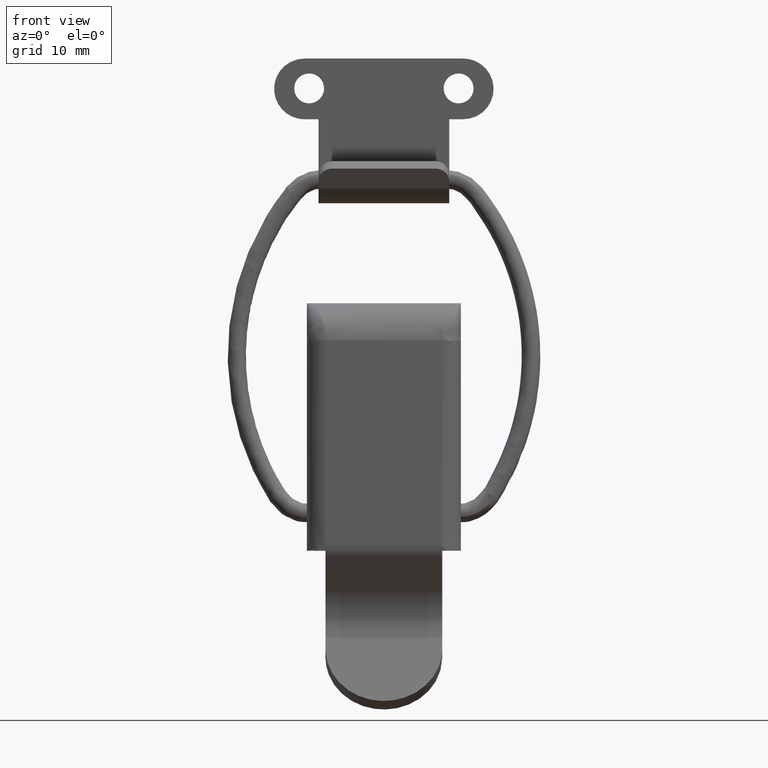
[diagram: clean part render]
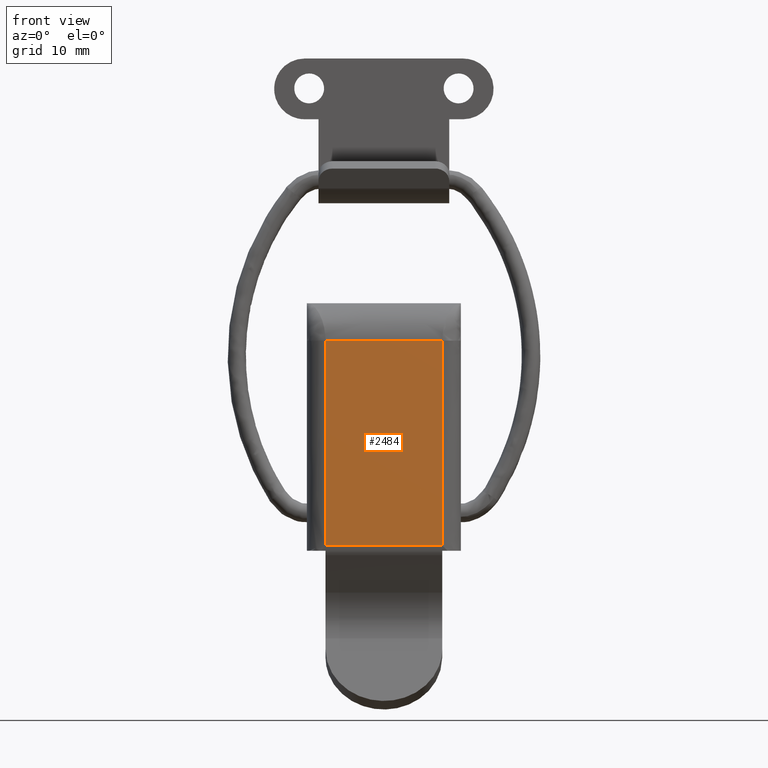
[diagram: same view with one face highlighted and labeled with its STEP entity id]
A machine part, front view. The second image highlights one B-rep face of the part: STEP entity #2484.
In plain terms, the highlighted face is a freeform B-spline surface patch.
Its self-contained STEP definition (entity closure, byte-faithful):
#430=CARTESIAN_POINT('',(6.250000000000000,-6.500000000000200,-3.435026921119290));
#431=VERTEX_POINT('',#430);
#447=CARTESIAN_POINT('',(-6.250000000000000,-6.500000000000200,-3.435026921119290));
#448=VERTEX_POINT('',#447);
#449=CARTESIAN_POINT('',(-6.250000000000000,-6.500000000000200,-3.435026921119290));
#450=CARTESIAN_POINT('',(6.250000000000000,-6.500000000000200,-3.435026921119290));
#451=QUASI_UNIFORM_CURVE('',1,(#449,#450),.UNSPECIFIED.,.F.,.U.);
#452=EDGE_CURVE('',#448,#431,#451,.T.);
#1291=CARTESIAN_POINT('',(-6.250000000000000,-6.500000000000200,18.500000000000000));
#1292=VERTEX_POINT('',#1291);
#1593=CARTESIAN_POINT('',(-6.250000000000000,-6.500000000000200,18.500000000000000));
#1594=CARTESIAN_POINT('',(-6.250000000000000,-6.500000000000200,-3.435026921119290));
#1595=QUASI_UNIFORM_CURVE('',1,(#1593,#1594),.UNSPECIFIED.,.F.,.U.);
#1596=EDGE_CURVE('',#1292,#448,#1595,.T.);
#1764=CARTESIAN_POINT('',(6.250000000000000,-6.500000000000200,18.500000000000000));
#1765=VERTEX_POINT('',#1764);
#1823=CARTESIAN_POINT('',(6.250000000000000,-6.500000000000200,-3.435026921119290));
#1824=CARTESIAN_POINT('',(6.250000000000000,-6.500000000000200,18.500000000000000));
#1825=QUASI_UNIFORM_CURVE('',1,(#1823,#1824),.UNSPECIFIED.,.F.,.U.);
#1826=EDGE_CURVE('',#431,#1765,#1825,.T.);
#2469=CARTESIAN_POINT('',(-6.874374975772576,-6.500000000000200,-4.530681473314862));
#2470=CARTESIAN_POINT('',(-6.874374975772576,-6.500000000000200,19.595655140538842));
#2471=CARTESIAN_POINT('',(6.874375311048702,-6.500000000000200,-4.530681473314862));
#2472=CARTESIAN_POINT('',(6.874375311048702,-6.500000000000200,19.595655140538842));
#2473=B_SPLINE_SURFACE_WITH_KNOTS('',1,1,((#2469,#2471),(#2470,#2472)),.UNSPECIFIED.,.F.,.F.,.U.,(2,2),(2,2),(0.0,24.126336613853699),(0.0,13.748750286821281),.UNSPECIFIED.);
#2474=ORIENTED_EDGE('',*,*,#1596,.T.);
#2475=ORIENTED_EDGE('',*,*,#452,.T.);
#2476=ORIENTED_EDGE('',*,*,#1826,.T.);
#2477=CARTESIAN_POINT('',(6.250000000000000,-6.500000000000200,18.500000000000000));
#2478=CARTESIAN_POINT('',(-6.250000000000000,-6.500000000000200,18.500000000000000));
#2479=QUASI_UNIFORM_CURVE('',1,(#2477,#2478),.UNSPECIFIED.,.F.,.U.);
#2480=EDGE_CURVE('',#1765,#1292,#2479,.T.);
#2481=ORIENTED_EDGE('',*,*,#2480,.T.);
#2482=EDGE_LOOP('',(#2474,#2475,#2476,#2481));
#2483=FACE_OUTER_BOUND('',#2482,.T.);
#2484=ADVANCED_FACE('',(#2483),#2473,.F.);